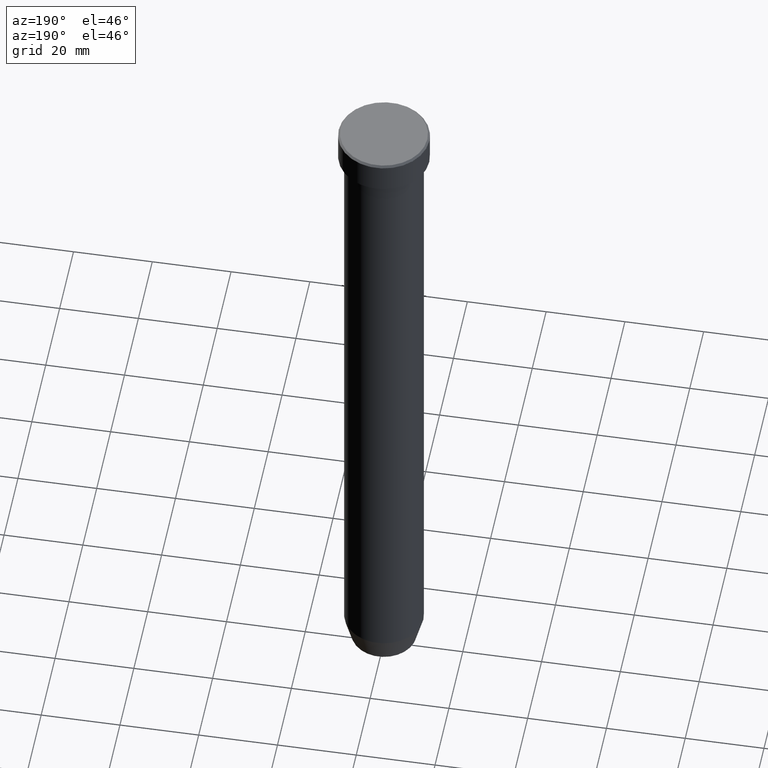
[diagram: clean part render]
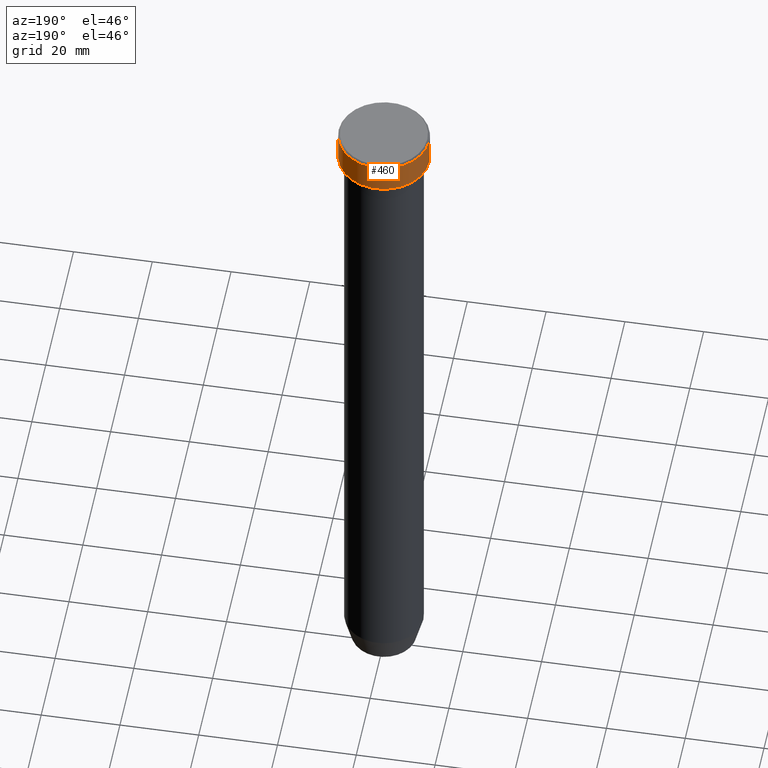
[diagram: same view with one face highlighted and labeled with its STEP entity id]
A machine part, auxiliary view. The second image highlights one B-rep face of the part: STEP entity #460.
In plain terms, the highlighted cylindrical surface (partial cylindrical patch) has radius 11.5 mm, axis along (-0, -0, 1).
Its self-contained STEP definition (entity closure, byte-faithful):
#16 = LINE ( 'NONE', #58, #519 ) ;
#28 = CYLINDRICAL_SURFACE ( 'NONE', #545, 11.50000000000000000 ) ;
#51 = EDGE_CURVE ( 'NONE', #314, #371, #535, .T. ) ;
#58 = CARTESIAN_POINT ( 'NONE',  ( 11.50000000000000000, 0.000000000000000000, 0.000000000000000000 ) ) ;
#71 = AXIS2_PLACEMENT_3D ( 'NONE', #498, #135, #267 ) ;
#96 = CARTESIAN_POINT ( 'NONE',  ( -11.50000000000000000, 1.408343819019456176E-15, -0.5000000000000073275 ) ) ;
#97 = EDGE_CURVE ( 'NONE', #525, #314, #266, .T. ) ;
#135 = DIRECTION ( 'NONE',  ( -0.000000000000000000, -0.000000000000000000, 1.000000000000000000 ) ) ;
#158 = DIRECTION ( 'NONE',  ( -0.000000000000000000, -0.000000000000000000, 1.000000000000000000 ) ) ;
#161 = CARTESIAN_POINT ( 'NONE',  ( 11.50000000000000000, 0.000000000000000000, -0.5000000000000073275 ) ) ;
#163 = DIRECTION ( 'NONE',  ( -0.000000000000000000, -0.000000000000000000, 1.000000000000000000 ) ) ;
#181 = CIRCLE ( 'NONE', #469, 11.50000000000000000 ) ;
#189 = VECTOR ( 'NONE', #439, 1000.000000000000000 ) ;
#194 = ORIENTED_EDGE ( 'NONE', *, *, #97, .T. ) ;
#210 = ORIENTED_EDGE ( 'NONE', *, *, #358, .F. ) ;
#212 = CARTESIAN_POINT ( 'NONE',  ( -11.50000000000000000, 1.408343819019456176E-15, 0.000000000000000000 ) ) ;
#242 = EDGE_LOOP ( 'NONE', ( #194, #350, #363, #210 ) ) ;
#265 = CARTESIAN_POINT ( 'NONE',  ( 11.50000000000000000, 0.000000000000000000, -8.000000000000000000 ) ) ;
#266 = CIRCLE ( 'NONE', #71, 11.50000000000000000 ) ;
#267 = DIRECTION ( 'NONE',  ( 1.000000000000000000, 0.000000000000000000, 0.000000000000000000 ) ) ;
#304 = FACE_OUTER_BOUND ( 'NONE', #242, .T. ) ;
#314 = VERTEX_POINT ( 'NONE', #510 ) ;
#350 = ORIENTED_EDGE ( 'NONE', *, *, #51, .T. ) ;
#358 = EDGE_CURVE ( 'NONE', #525, #549, #16, .T. ) ;
#363 = ORIENTED_EDGE ( 'NONE', *, *, #481, .T. ) ;
#371 = VERTEX_POINT ( 'NONE', #96 ) ;
#403 = CARTESIAN_POINT ( 'NONE',  ( 0.000000000000000000, 0.000000000000000000, -0.5000000000000073275 ) ) ;
#439 = DIRECTION ( 'NONE',  ( -0.000000000000000000, -0.000000000000000000, 1.000000000000000000 ) ) ;
#446 = DIRECTION ( 'NONE',  ( 1.000000000000000000, 0.000000000000000000, 0.000000000000000000 ) ) ;
#460 = ADVANCED_FACE ( 'NONE', ( #304 ), #28, .T. ) ;
#469 = AXIS2_PLACEMENT_3D ( 'NONE', #403, #539, #486 ) ;
#481 = EDGE_CURVE ( 'NONE', #371, #549, #181, .T. ) ;
#486 = DIRECTION ( 'NONE',  ( 1.000000000000000000, 0.000000000000000000, 0.000000000000000000 ) ) ;
#498 = CARTESIAN_POINT ( 'NONE',  ( 0.000000000000000000, 0.000000000000000000, -8.000000000000000000 ) ) ;
#510 = CARTESIAN_POINT ( 'NONE',  ( -11.50000000000000000, 1.408343819019456176E-15, -8.000000000000000000 ) ) ;
#519 = VECTOR ( 'NONE', #158, 1000.000000000000000 ) ;
#525 = VERTEX_POINT ( 'NONE', #265 ) ;
#532 = CARTESIAN_POINT ( 'NONE',  ( 0.000000000000000000, 0.000000000000000000, 0.000000000000000000 ) ) ;
#535 = LINE ( 'NONE', #212, #189 ) ;
#539 = DIRECTION ( 'NONE',  ( 0.000000000000000000, 0.000000000000000000, -1.000000000000000000 ) ) ;
#545 = AXIS2_PLACEMENT_3D ( 'NONE', #532, #163, #446 ) ;
#549 = VERTEX_POINT ( 'NONE', #161 ) ;